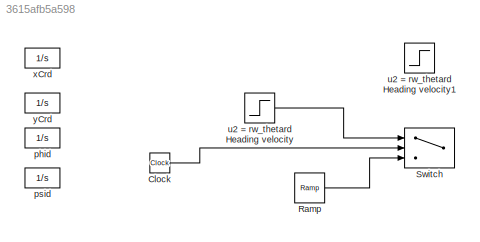
MODEL slx_3615afb5a598
KIND model
CONFIG AbsTol = auto
CONFIG EnableMultiTasking = off
CONFIG FixedStep = auto
CONFIG MaxStep = auto
CONFIG MinStep = auto
CONFIG RelTol = 1e-3
CONFIG SampleTimeConstraint = Unconstrained
CONFIG Solver = VariableStepAuto
CONFIG SolverName = VariableStepAuto
CONFIG StartTime = 0.0
CONFIG StopTime = 10.0
BLOCK [Clock] Clock
BLOCK [Reference] Ramp  REF=simulink/Sources/Ramp
  Ports = [0, 1]
  SourceBlock = simulink/Sources/Ramp
  SourceProductBaseCode = SL
  SourceProductName = Simulink
  SourceType = Ramp
BLOCK [Switch] Switch
  InputSameDT = off
  SaturateOnIntegerOverflow = off
  Threshold = 2
BLOCK [Integrator] phid
  InitialCondition = phi_init
  Ports = [1, 1]
BLOCK [Integrator] psid
  InitialCondition = psi_init
  Ports = [1, 1]
BLOCK [Step] u2 = rw_thetard Heading velocity
  SampleTime = 0
  Time = 2
BLOCK [Step] u2 = rw_thetard Heading velocity1
  After = v_init
  SampleTime = 0
  Time = 0
BLOCK [Integrator] xCrd
  InitialCondition = xCr_init
  Ports = [1, 1]
BLOCK [Integrator] yCrd
  InitialCondition = yCr_init
  Ports = [1, 1]
LINE Clock:1 -> Switch:2
LINE Ramp:1 -> Switch:3
LINE u2 = rw_thetard Heading velocity:1 -> Switch:1
